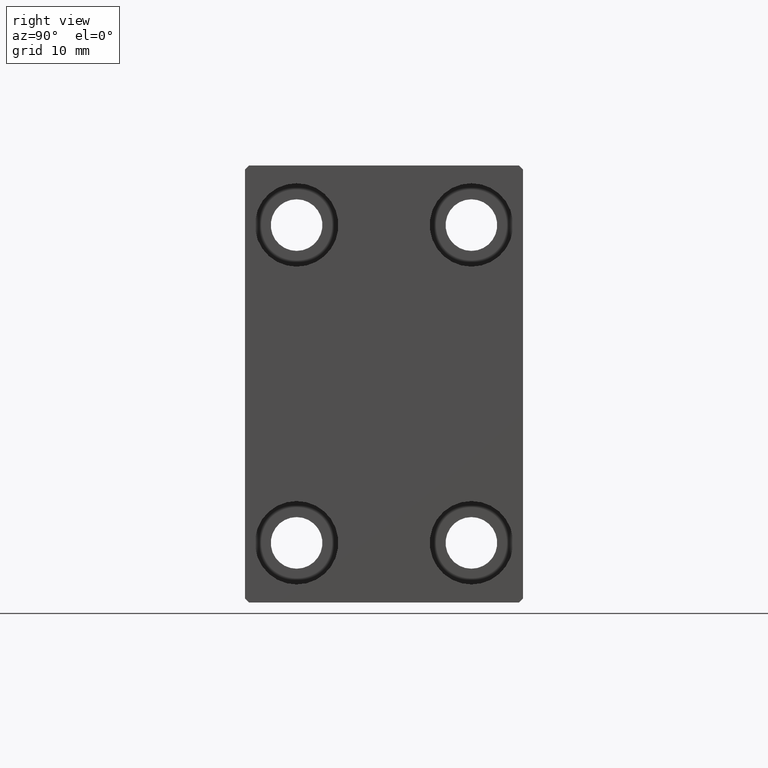
[diagram: clean part render]
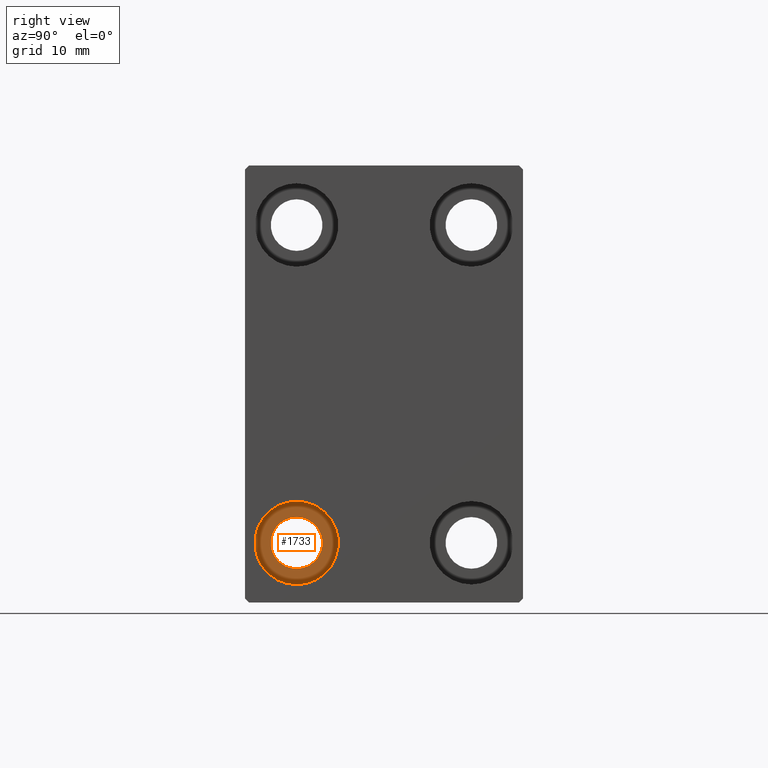
[diagram: same view with one face highlighted and labeled with its STEP entity id]
A machine part, right view. The second image highlights one B-rep face of the part: STEP entity #1733.
In plain terms, the highlighted planar face has unit normal (1, 0, 0).
Its self-contained STEP definition (entity closure, byte-faithful):
#531 = AXIS2_PLACEMENT_3D ( 'NONE', #33632, #36302, #40526 ) ;
#1733 = ADVANCED_FACE ( 'NONE', ( #3073, #16653 ), #7063, .T. ) ;
#3073 = FACE_OUTER_BOUND ( 'NONE', #34251, .T. ) ;
#4080 = CARTESIAN_POINT ( 'NONE',  ( 49.00000000000000000, -11.00000000000000355, -23.25000000000000000 ) ) ;
#4653 = CARTESIAN_POINT ( 'NONE',  ( 49.00000000000000000, -11.00000000000000355, -20.00000000000000000 ) ) ;
#7063 = PLANE ( 'NONE',  #31624 ) ;
#7624 = DIRECTION ( 'NONE',  ( 0.000000000000000000, 0.000000000000000000, -1.000000000000000000 ) ) ;
#7670 = AXIS2_PLACEMENT_3D ( 'NONE', #4653, #18659, #32043 ) ;
#8345 = CIRCLE ( 'NONE', #531, 5.250000000000000888 ) ;
#8734 = EDGE_CURVE ( 'NONE', #9874, #17000, #8345, .T. ) ;
#9874 = VERTEX_POINT ( 'NONE', #28563 ) ;
#11193 = DIRECTION ( 'NONE',  ( -1.000000000000000000, -0.000000000000000000, -0.000000000000000000 ) ) ;
#11743 = EDGE_CURVE ( 'NONE', #32552, #20524, #14791, .T. ) ;
#11939 = ORIENTED_EDGE ( 'NONE', *, *, #16102, .F. ) ;
#12012 = AXIS2_PLACEMENT_3D ( 'NONE', #12327, #35710, #33030 ) ;
#12327 = CARTESIAN_POINT ( 'NONE',  ( 49.00000000000000000, -11.00000000000000355, -20.00000000000000000 ) ) ;
#14740 = CARTESIAN_POINT ( 'NONE',  ( 49.00000000000000000, -11.00000000000000355, -20.00000000000000000 ) ) ;
#14791 = CIRCLE ( 'NONE', #20487, 3.249999999999999556 ) ;
#16102 = EDGE_CURVE ( 'NONE', #17000, #9874, #37548, .T. ) ;
#16653 = FACE_BOUND ( 'NONE', #35614, .T. ) ;
#17000 = VERTEX_POINT ( 'NONE', #42830 ) ;
#17013 = EDGE_CURVE ( 'NONE', #20524, #32552, #29773, .T. ) ;
#18659 = DIRECTION ( 'NONE',  ( -1.000000000000000000, -0.000000000000000000, -0.000000000000000000 ) ) ;
#20136 = ORIENTED_EDGE ( 'NONE', *, *, #11743, .T. ) ;
#20487 = AXIS2_PLACEMENT_3D ( 'NONE', #14740, #11193, #7624 ) ;
#20524 = VERTEX_POINT ( 'NONE', #4080 ) ;
#28563 = CARTESIAN_POINT ( 'NONE',  ( 49.00000000000000000, -11.00000000000000355, -25.25000000000000000 ) ) ;
#29773 = CIRCLE ( 'NONE', #12012, 3.249999999999999556 ) ;
#30039 = CARTESIAN_POINT ( 'NONE',  ( 49.00000000000000000, -11.00000000000000355, -16.75000000000000000 ) ) ;
#30255 = DIRECTION ( 'NONE',  ( 0.000000000000000000, 0.000000000000000000, 1.000000000000000000 ) ) ;
#30469 = DIRECTION ( 'NONE',  ( 1.000000000000000000, 0.000000000000000000, -0.000000000000000000 ) ) ;
#31624 = AXIS2_PLACEMENT_3D ( 'NONE', #40699, #30469, #30255 ) ;
#32043 = DIRECTION ( 'NONE',  ( 0.000000000000000000, 0.000000000000000000, 1.000000000000000000 ) ) ;
#32058 = ORIENTED_EDGE ( 'NONE', *, *, #17013, .T. ) ;
#32552 = VERTEX_POINT ( 'NONE', #30039 ) ;
#33030 = DIRECTION ( 'NONE',  ( 0.000000000000000000, 0.000000000000000000, -1.000000000000000000 ) ) ;
#33632 = CARTESIAN_POINT ( 'NONE',  ( 49.00000000000000000, -11.00000000000000355, -20.00000000000000000 ) ) ;
#34251 = EDGE_LOOP ( 'NONE', ( #34467, #11939 ) ) ;
#34467 = ORIENTED_EDGE ( 'NONE', *, *, #8734, .F. ) ;
#35614 = EDGE_LOOP ( 'NONE', ( #20136, #32058 ) ) ;
#35710 = DIRECTION ( 'NONE',  ( -1.000000000000000000, -0.000000000000000000, -0.000000000000000000 ) ) ;
#36302 = DIRECTION ( 'NONE',  ( -1.000000000000000000, -0.000000000000000000, -0.000000000000000000 ) ) ;
#37548 = CIRCLE ( 'NONE', #7670, 5.250000000000000888 ) ;
#40526 = DIRECTION ( 'NONE',  ( 0.000000000000000000, 0.000000000000000000, 1.000000000000000000 ) ) ;
#40699 = CARTESIAN_POINT ( 'NONE',  ( 49.00000000000000000, 0.000000000000000000, 0.000000000000000000 ) ) ;
#42830 = CARTESIAN_POINT ( 'NONE',  ( 49.00000000000000000, -11.00000000000000355, -14.75000000000000000 ) ) ;